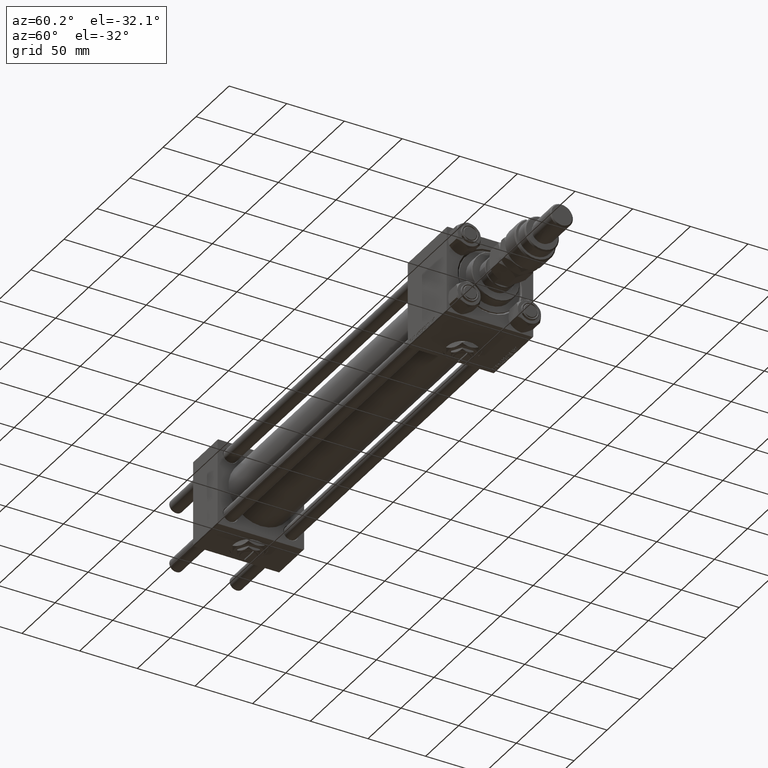
[diagram: clean part render]
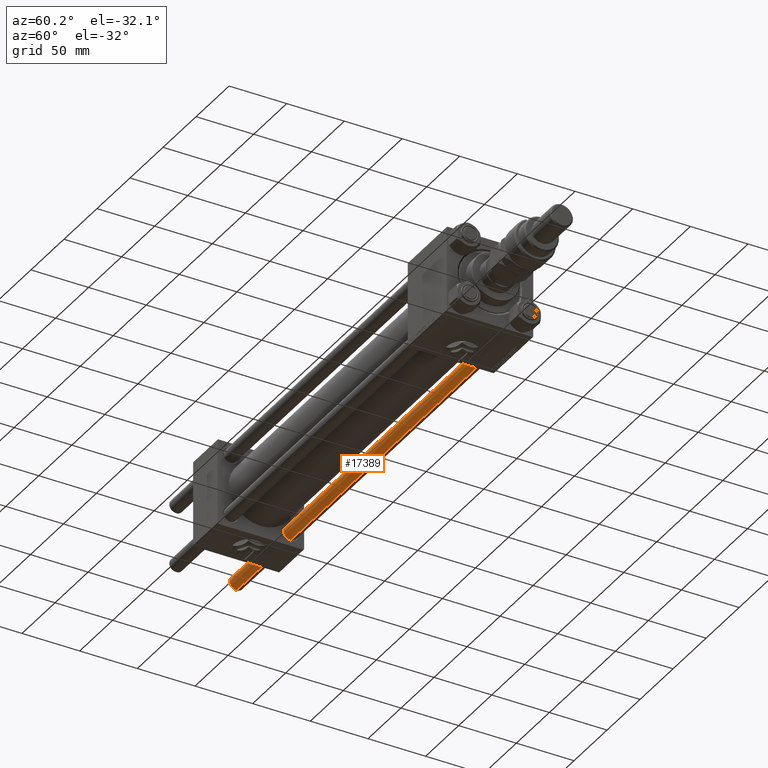
[diagram: same view with one face highlighted and labeled with its STEP entity id]
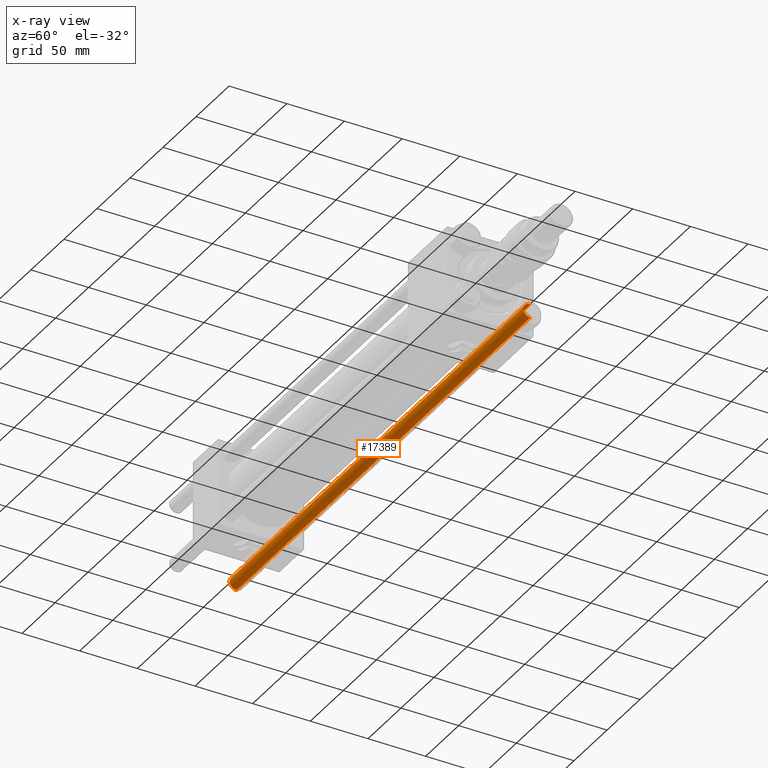
[diagram: x-ray of the same camera — body ghosted, the highlighted face saturated]
A machine part, auxiliary view. The second image highlights one B-rep face of the part: STEP entity #17389.
The next image is the same camera in x-ray: the body ghosted, the highlighted face saturated — about 0% of this face is hidden behind the body in this view.
In plain terms, the highlighted cylindrical surface (edge-blend (fillet) strip) has radius 6 mm, axis along (1, 0, -0).
Its self-contained STEP definition (entity closure, byte-faithful):
#551 = ORIENTED_EDGE ( 'NONE', *, *, #7313, .T. ) ;
#754 = CARTESIAN_POINT ( 'NONE',  ( 0.000000000000000000, 0.000000000000000000, 0.5000000000003890221 ) ) ;
#5372 = CARTESIAN_POINT ( 'NONE',  ( -6.000000000000000888, 0.000000000000000000, 445.5000000000003411 ) ) ;
#5679 = DIRECTION ( 'NONE',  ( -0.000000000000000000, -0.000000000000000000, -1.000000000000000000 ) ) ;
#6485 = CARTESIAN_POINT ( 'NONE',  ( -6.000000000000000888, 0.000000000000000000, 0.5000000000003890221 ) ) ;
#6934 = DIRECTION ( 'NONE',  ( 0.000000000000000000, 0.000000000000000000, -1.000000000000000000 ) ) ;
#7148 = CIRCLE ( 'NONE', #38873, 6.000000000000000888 ) ;
#7313 = EDGE_CURVE ( 'NONE', #33316, #42847, #10413, .T. ) ;
#8111 = VERTEX_POINT ( 'NONE', #48313 ) ;
#8604 = AXIS2_PLACEMENT_3D ( 'NONE', #19204, #5679, #26396 ) ;
#10413 = CIRCLE ( 'NONE', #28032, 6.000000000000000888 ) ;
#10484 = EDGE_CURVE ( 'NONE', #8111, #42847, #53768, .T. ) ;
#13750 = ORIENTED_EDGE ( 'NONE', *, *, #10484, .F. ) ;
#14367 = VECTOR ( 'NONE', #22515, 1000.000000000000000 ) ;
#14781 = LINE ( 'NONE', #48478, #14367 ) ;
#16466 = DIRECTION ( 'NONE',  ( -0.000000000000000000, -0.000000000000000000, -1.000000000000000000 ) ) ;
#17389 = ADVANCED_FACE ( 'NONE', ( #35238 ), #51817, .T. ) ;
#19204 = CARTESIAN_POINT ( 'NONE',  ( 0.000000000000000000, 0.000000000000000000, 446.0000000000000000 ) ) ;
#20615 = CARTESIAN_POINT ( 'NONE',  ( 6.000000000000000888, 7.347880794884119736E-16, 446.0000000000000000 ) ) ;
#21082 = VECTOR ( 'NONE', #16466, 1000.000000000000000 ) ;
#21825 = EDGE_LOOP ( 'NONE', ( #13750, #36704, #40523, #551 ) ) ;
#22515 = DIRECTION ( 'NONE',  ( -0.000000000000000000, -0.000000000000000000, -1.000000000000000000 ) ) ;
#23272 = EDGE_CURVE ( 'NONE', #8111, #45788, #7148, .T. ) ;
#23513 = CARTESIAN_POINT ( 'NONE',  ( 0.000000000000000000, 0.000000000000000000, 445.5000000000003411 ) ) ;
#26396 = DIRECTION ( 'NONE',  ( -1.000000000000000000, 0.000000000000000000, 0.000000000000000000 ) ) ;
#28032 = AXIS2_PLACEMENT_3D ( 'NONE', #754, #42725, #34440 ) ;
#33316 = VERTEX_POINT ( 'NONE', #6485 ) ;
#34440 = DIRECTION ( 'NONE',  ( 1.000000000000000000, 0.000000000000000000, 0.000000000000000000 ) ) ;
#35238 = FACE_OUTER_BOUND ( 'NONE', #21825, .T. ) ;
#36704 = ORIENTED_EDGE ( 'NONE', *, *, #23272, .T. ) ;
#38873 = AXIS2_PLACEMENT_3D ( 'NONE', #23513, #6934, #45041 ) ;
#40523 = ORIENTED_EDGE ( 'NONE', *, *, #47653, .T. ) ;
#42725 = DIRECTION ( 'NONE',  ( -0.000000000000000000, -0.000000000000000000, 1.000000000000000000 ) ) ;
#42847 = VERTEX_POINT ( 'NONE', #53661 ) ;
#45041 = DIRECTION ( 'NONE',  ( 1.000000000000000000, 0.000000000000000000, 0.000000000000000000 ) ) ;
#45788 = VERTEX_POINT ( 'NONE', #5372 ) ;
#47653 = EDGE_CURVE ( 'NONE', #45788, #33316, #14781, .T. ) ;
#48313 = CARTESIAN_POINT ( 'NONE',  ( 6.000000000000000888, 7.347880794884119736E-16, 445.5000000000003411 ) ) ;
#48478 = CARTESIAN_POINT ( 'NONE',  ( -6.000000000000000888, 0.000000000000000000, 446.0000000000000000 ) ) ;
#51817 = CYLINDRICAL_SURFACE ( 'NONE', #8604, 6.000000000000000888 ) ;
#53661 = CARTESIAN_POINT ( 'NONE',  ( 6.000000000000000888, 7.347880794884119736E-16, 0.5000000000003890221 ) ) ;
#53768 = LINE ( 'NONE', #20615, #21082 ) ;